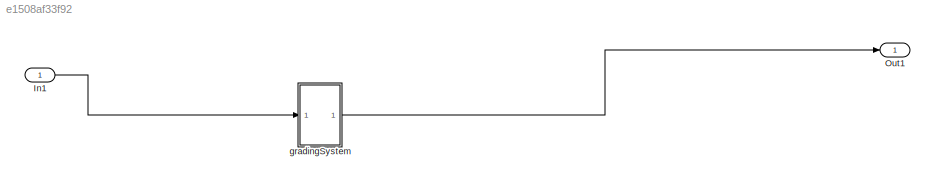
MODEL slx_e1508af33f92
KIND model
CONFIG AbsTol = auto
CONFIG EnableMultiTasking = off
CONFIG FixedStep = auto
CONFIG MaxStep = auto
CONFIG MinStep = auto
CONFIG RelTol = 1e-3
CONFIG SampleTimeConstraint = Unconstrained
CONFIG SolverName = VariableStepAuto
CONFIG StartTime = 0.0
CONFIG StopTime = 10.0
BLOCK [Inport] In1
BLOCK [Outport] Out1
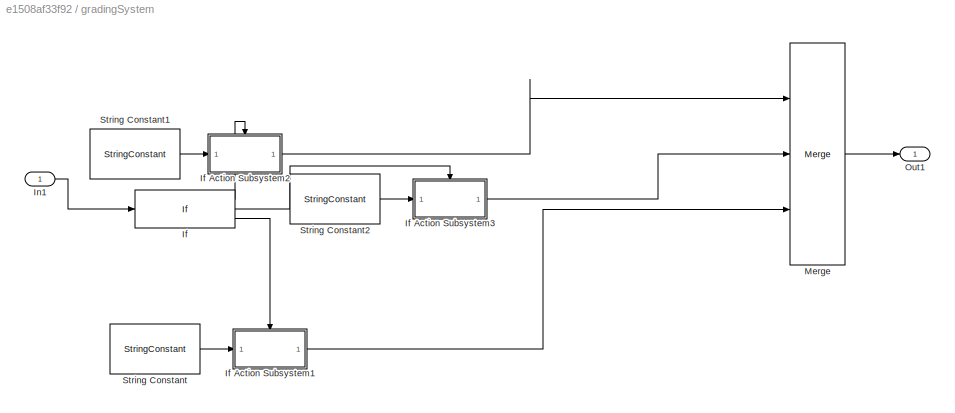
BLOCK [SubSystem] gradingSystem
  Ports = [1, 1]
  RequestExecContextInheritance = off
BLOCK [If] gradingSystem/If
  ElseIfExpressions = u1 >=50
  IfExpression = u1 >100 & u1 <0
  Ports = [1, 3]
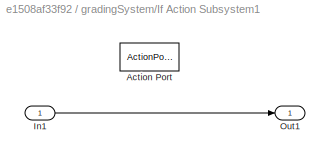
BLOCK [SubSystem] gradingSystem/If Action Subsystem1
  Ports = [1, 1, 0, 0, 0, 0, 0, 1]
  RequestExecContextInheritance = off
  TreatAsAtomicUnit = on
BLOCK [ActionPort] gradingSystem/If Action Subsystem1/Action Port
  ActionPortLabel = else
  InitializeStates = reset
BLOCK [Inport] gradingSystem/If Action Subsystem1/In1
BLOCK [Outport] gradingSystem/If Action Subsystem1/Out1
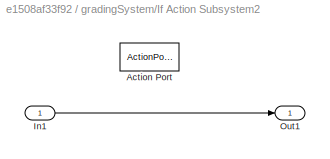
BLOCK [SubSystem] gradingSystem/If Action Subsystem2
  Ports = [1, 1, 0, 0, 0, 0, 0, 1]
  RequestExecContextInheritance = off
  TreatAsAtomicUnit = on
BLOCK [ActionPort] gradingSystem/If Action Subsystem2/Action Port
  ActionPortLabel = if(u1 >100 & u1 <0)
  InitializeStates = reset
BLOCK [Inport] gradingSystem/If Action Subsystem2/In1
BLOCK [Outport] gradingSystem/If Action Subsystem2/Out1
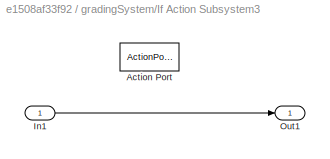
BLOCK [SubSystem] gradingSystem/If Action Subsystem3
  Ports = [1, 1, 0, 0, 0, 0, 0, 1]
  RequestExecContextInheritance = off
  TreatAsAtomicUnit = on
BLOCK [ActionPort] gradingSystem/If Action Subsystem3/Action Port
  ActionPortLabel = elseif(u1 >=50)
  InitializeStates = reset
BLOCK [Inport] gradingSystem/If Action Subsystem3/In1
BLOCK [Outport] gradingSystem/If Action Subsystem3/Out1
BLOCK [Inport] gradingSystem/In1
BLOCK [Merge] gradingSystem/Merge
  Inputs = 3
  Ports = [3, 1]
BLOCK [Outport] gradingSystem/Out1
BLOCK [StringConstant] gradingSystem/String Constant
  String = "Failed"
BLOCK [StringConstant] gradingSystem/String Constant1
  String = "Invalid"
BLOCK [StringConstant] gradingSystem/String Constant2
  String = "Passed"
LINE In1:1 -> gradingSystem:1
LINE gradingSystem/If Action Subsystem1/In1:1 -> gradingSystem/If Action Subsystem1/Out1:1
LINE gradingSystem/If Action Subsystem1:1 -> gradingSystem/Merge:3
LINE gradingSystem/If Action Subsystem2/In1:1 -> gradingSystem/If Action Subsystem2/Out1:1
LINE gradingSystem/If Action Subsystem2:1 -> gradingSystem/Merge:1
LINE gradingSystem/If Action Subsystem3/In1:1 -> gradingSystem/If Action Subsystem3/Out1:1
LINE gradingSystem/If Action Subsystem3:1 -> gradingSystem/Merge:2
LINE gradingSystem/If:1 -> gradingSystem/If Action Subsystem2:ifaction
LINE gradingSystem/If:2 -> gradingSystem/If Action Subsystem3:ifaction
LINE gradingSystem/If:3 -> gradingSystem/If Action Subsystem1:ifaction
LINE gradingSystem/In1:1 -> gradingSystem/If:1
LINE gradingSystem/Merge:1 -> gradingSystem/Out1:1
LINE gradingSystem/String Constant1:1 -> gradingSystem/If Action Subsystem2:1
LINE gradingSystem/String Constant2:1 -> gradingSystem/If Action Subsystem3:1
LINE gradingSystem/String Constant:1 -> gradingSystem/If Action Subsystem1:1
LINE gradingSystem:1 -> Out1:1
